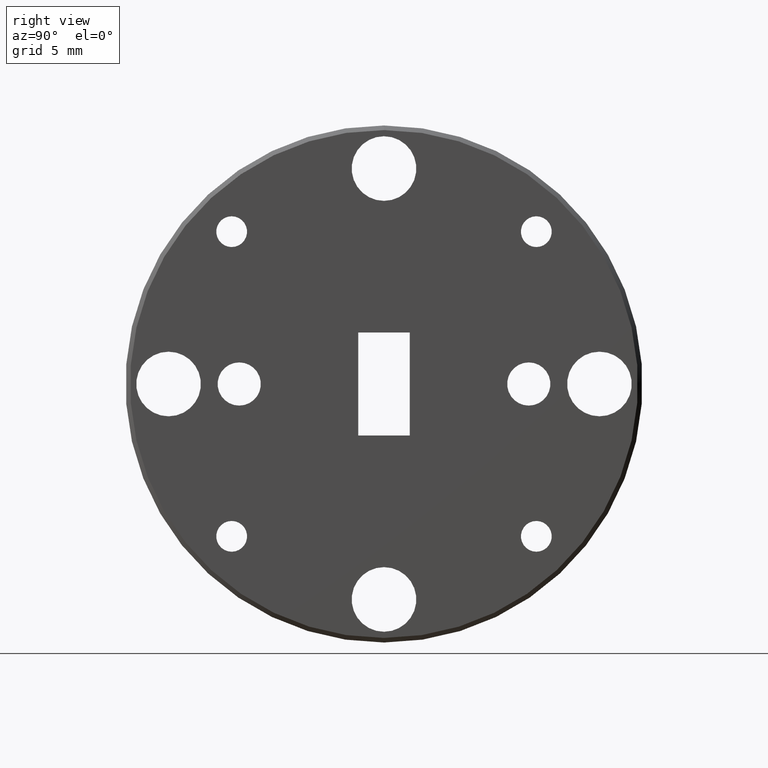
[diagram: clean part render]
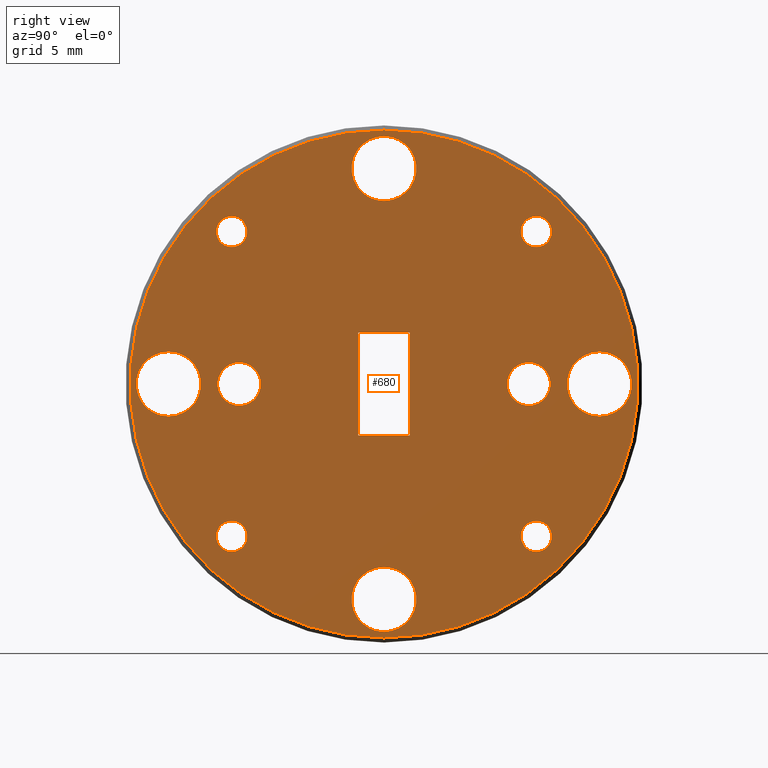
[diagram: same view with one face highlighted and labeled with its STEP entity id]
A machine part, right view. The second image highlights one B-rep face of the part: STEP entity #680.
In plain terms, the highlighted planar face has unit normal (1, 0, -0).
Its self-contained STEP definition (entity closure, byte-faithful):
#12 = DIRECTION ( 'NONE',  ( -0.0000000000000000000, -0.0000000000000000000, -1.000000000000000000 ) ) ;
#13 = DIRECTION ( 'NONE',  ( 1.000000000000000000, -0.0000000000000000000, -0.0000000000000000000 ) ) ;
#18 = CARTESIAN_POINT ( 'NONE',  ( 0.09200000000000004000, -0.3314563036811935000, 0.3314563036811948900 ) ) ;
#25 = CARTESIAN_POINT ( 'NONE',  ( 0.09200000000000004000, 0.3314563036811948900, 0.3314563036811935000 ) ) ;
#28 = CARTESIAN_POINT ( 'NONE',  ( 0.09200000000000004000, -0.3150000000000000000, 0.0000000000000000000 ) ) ;
#32 = CARTESIAN_POINT ( 'NONE',  ( 0.09200000000000004000, 0.5625000000000000000, 0.0000000000000000000 ) ) ;
#36 = EDGE_CURVE ( 'NONE', #704, #878, #49, .T. ) ;
#39 = DIRECTION ( 'NONE',  ( 1.000000000000000000, -0.0000000000000000000, -0.0000000000000000000 ) ) ;
#40 = DIRECTION ( 'NONE',  ( 0.0000000000000000000, 0.0000000000000000000, -1.000000000000000000 ) ) ;
#44 = VERTEX_POINT ( 'NONE', #168 ) ;
#45 = ORIENTED_EDGE ( 'NONE', *, *, #863, .T. ) ;
#48 = DIRECTION ( 'NONE',  ( 1.000000000000000000, -0.0000000000000000000, -0.0000000000000000000 ) ) ;
#49 = CIRCLE ( 'NONE', #999, 0.5525000000000003200 ) ;
#60 = FACE_BOUND ( 'NONE', #990, .T. ) ;
#61 = EDGE_CURVE ( 'NONE', #984, #682, #543, .T. ) ;
#70 = CIRCLE ( 'NONE', #142, 0.03349999999999972400 ) ;
#85 = FACE_OUTER_BOUND ( 'NONE', #855, .T. ) ;
#98 = CIRCLE ( 'NONE', #1012, 0.07031499999999975300 ) ;
#99 = CARTESIAN_POINT ( 'NONE',  ( 0.09200000000000004000, -0.05600000000000000800, 0.1120000000000000400 ) ) ;
#116 = DIRECTION ( 'NONE',  ( 1.000000000000000000, -0.0000000000000000000, -0.0000000000000000000 ) ) ;
#119 = EDGE_LOOP ( 'NONE', ( #1119, #507 ) ) ;
#120 = CARTESIAN_POINT ( 'NONE',  ( 0.09200000000000004000, 0.0000000000000000000, 0.5525000000000003200 ) ) ;
#134 = VERTEX_POINT ( 'NONE', #1059 ) ;
#137 = CARTESIAN_POINT ( 'NONE',  ( 0.09200000000000004000, 0.4687500000000000000, 0.0000000000000000000 ) ) ;
#140 = EDGE_CURVE ( 'NONE', #352, #670, #829, .T. ) ;
#142 = AXIS2_PLACEMENT_3D ( 'NONE', #649, #312, #1002 ) ;
#146 = ORIENTED_EDGE ( 'NONE', *, *, #1040, .F. ) ;
#156 = CARTESIAN_POINT ( 'NONE',  ( 0.09200000000000004000, 0.3314563036811948900, 0.3314563036811935000 ) ) ;
#157 = VERTEX_POINT ( 'NONE', #970 ) ;
#160 = CARTESIAN_POINT ( 'NONE',  ( 0.09200000000000004000, 0.4687500000000000000, -0.07031499999999975300 ) ) ;
#163 = AXIS2_PLACEMENT_3D ( 'NONE', #18, #647, #560 ) ;
#168 = CARTESIAN_POINT ( 'NONE',  ( 0.09200000000000004000, 0.3314563036811935000, -0.3649563036811946400 ) ) ;
#175 = CIRCLE ( 'NONE', #212, 0.07031499999999975300 ) ;
#177 = VERTEX_POINT ( 'NONE', #362 ) ;
#184 = AXIS2_PLACEMENT_3D ( 'NONE', #214, #13, #1075 ) ;
#186 = CIRCLE ( 'NONE', #918, 0.04699999999999998600 ) ;
#189 = ORIENTED_EDGE ( 'NONE', *, *, #1140, .T. ) ;
#191 = AXIS2_PLACEMENT_3D ( 'NONE', #156, #789, #883 ) ;
#193 = DIRECTION ( 'NONE',  ( 1.000000000000000000, -0.0000000000000000000, -0.0000000000000000000 ) ) ;
#197 = ORIENTED_EDGE ( 'NONE', *, *, #401, .F. ) ;
#198 = DIRECTION ( 'NONE',  ( 0.0000000000000000000, 0.0000000000000000000, -1.000000000000000000 ) ) ;
#199 = DIRECTION ( 'NONE',  ( 0.0000000000000000000, 0.0000000000000000000, -1.000000000000000000 ) ) ;
#202 = FACE_BOUND ( 'NONE', #244, .T. ) ;
#205 = CARTESIAN_POINT ( 'NONE',  ( 0.09200000000000004000, 0.3150000000000000000, 0.0000000000000000000 ) ) ;
#210 = PLANE ( 'NONE',  #596 ) ;
#211 = CARTESIAN_POINT ( 'NONE',  ( 0.09200000000000004000, -0.4687500000000000000, 0.0000000000000000000 ) ) ;
#212 = AXIS2_PLACEMENT_3D ( 'NONE', #211, #193, #1006 ) ;
#214 = CARTESIAN_POINT ( 'NONE',  ( 0.09200000000000004000, 0.0000000000000000000, 0.4687500000000000000 ) ) ;
#218 = CIRCLE ( 'NONE', #681, 0.5525000000000003200 ) ;
#221 = DIRECTION ( 'NONE',  ( 1.000000000000000000, -0.0000000000000000000, -0.0000000000000000000 ) ) ;
#244 = EDGE_LOOP ( 'NONE', ( #820, #343 ) ) ;
#250 = ORIENTED_EDGE ( 'NONE', *, *, #495, .F. ) ;
#261 = AXIS2_PLACEMENT_3D ( 'NONE', #25, #719, #198 ) ;
#262 = CARTESIAN_POINT ( 'NONE',  ( 0.09200000000000004000, 0.3314563036811948900, 0.3649563036811933100 ) ) ;
#265 = EDGE_CURVE ( 'NONE', #916, #335, #98, .T. ) ;
#271 = LINE ( 'NONE', #1113, #708 ) ;
#272 = CIRCLE ( 'NONE', #534, 0.07031499999999975300 ) ;
#273 = CARTESIAN_POINT ( 'NONE',  ( 0.09200000000000004000, -0.3314563036811949400, -0.3314563036811935000 ) ) ;
#275 = VERTEX_POINT ( 'NONE', #819 ) ;
#278 = CARTESIAN_POINT ( 'NONE',  ( 0.09200000000000004000, -0.4687500000000000000, 0.0000000000000000000 ) ) ;
#296 = FACE_BOUND ( 'NONE', #1028, .T. ) ;
#301 = DIRECTION ( 'NONE',  ( 0.0000000000000000000, 0.0000000000000000000, -1.000000000000000000 ) ) ;
#303 = AXIS2_PLACEMENT_3D ( 'NONE', #480, #48, #492 ) ;
#307 = EDGE_LOOP ( 'NONE', ( #551, #700 ) ) ;
#312 = DIRECTION ( 'NONE',  ( 1.000000000000000000, -0.0000000000000000000, -0.0000000000000000000 ) ) ;
#315 = DIRECTION ( 'NONE',  ( 0.0000000000000000000, 0.0000000000000000000, 1.000000000000000000 ) ) ;
#317 = CARTESIAN_POINT ( 'NONE',  ( 0.09200000000000004000, -0.3150000000000000000, 0.0000000000000000000 ) ) ;
#318 = EDGE_CURVE ( 'NONE', #384, #514, #354, .T. ) ;
#323 = ORIENTED_EDGE ( 'NONE', *, *, #996, .T. ) ;
#327 = CIRCLE ( 'NONE', #816, 0.04700000000000000700 ) ;
#333 = DIRECTION ( 'NONE',  ( 1.000000000000000000, -0.0000000000000000000, -0.0000000000000000000 ) ) ;
#335 = VERTEX_POINT ( 'NONE', #912 ) ;
#336 = ORIENTED_EDGE ( 'NONE', *, *, #531, .F. ) ;
#337 = CIRCLE ( 'NONE', #403, 0.04700000000000000700 ) ;
#338 = CIRCLE ( 'NONE', #1073, 0.07031499999999975300 ) ;
#339 = EDGE_CURVE ( 'NONE', #587, #365, #175, .T. ) ;
#343 = ORIENTED_EDGE ( 'NONE', *, *, #468, .F. ) ;
#345 = DIRECTION ( 'NONE',  ( 1.000000000000000000, -0.0000000000000000000, -0.0000000000000000000 ) ) ;
#351 = EDGE_LOOP ( 'NONE', ( #323, #1009, #189, #45 ) ) ;
#352 = VERTEX_POINT ( 'NONE', #387 ) ;
#353 = CIRCLE ( 'NONE', #397, 0.03349999999999972400 ) ;
#354 = CIRCLE ( 'NONE', #668, 0.07031499999999975300 ) ;
#358 = VERTEX_POINT ( 'NONE', #99 ) ;
#362 = CARTESIAN_POINT ( 'NONE',  ( 0.09200000000000004000, 0.3314563036811935000, -0.2979563036811951300 ) ) ;
#363 = CARTESIAN_POINT ( 'NONE',  ( 0.09200000000000004000, -0.05600000000000000800, -0.1119999999999999700 ) ) ;
#364 = VERTEX_POINT ( 'NONE', #998 ) ;
#365 = VERTEX_POINT ( 'NONE', #567 ) ;
#384 = VERTEX_POINT ( 'NONE', #542 ) ;
#387 = CARTESIAN_POINT ( 'NONE',  ( 0.09200000000000004000, 0.05600000000000000800, 0.1120000000000000400 ) ) ;
#390 = CARTESIAN_POINT ( 'NONE',  ( 0.09200000000000004000, 6.827405905246495700E-017, -0.5525000000000003200 ) ) ;
#397 = AXIS2_PLACEMENT_3D ( 'NONE', #273, #1062, #530 ) ;
#401 = EDGE_CURVE ( 'NONE', #134, #408, #684, .T. ) ;
#403 = AXIS2_PLACEMENT_3D ( 'NONE', #205, #552, #569 ) ;
#408 = VERTEX_POINT ( 'NONE', #920 ) ;
#414 = CARTESIAN_POINT ( 'NONE',  ( 0.09200000000000004000, 0.0000000000000000000, 0.5390649999999997900 ) ) ;
#420 = AXIS2_PLACEMENT_3D ( 'NONE', #925, #845, #744 ) ;
#433 = EDGE_CURVE ( 'NONE', #725, #917, #510, .T. ) ;
#451 = AXIS2_PLACEMENT_3D ( 'NONE', #317, #852, #675 ) ;
#456 = LINE ( 'NONE', #363, #1086 ) ;
#457 = FACE_BOUND ( 'NONE', #754, .T. ) ;
#466 = CARTESIAN_POINT ( 'NONE',  ( 0.09200000000000004000, 0.0000000000000000000, -0.4687500000000000000 ) ) ;
#468 = EDGE_CURVE ( 'NONE', #157, #712, #186, .T. ) ;
#471 = VERTEX_POINT ( 'NONE', #578 ) ;
#476 = ORIENTED_EDGE ( 'NONE', *, *, #730, .F. ) ;
#477 = DIRECTION ( 'NONE',  ( 1.000000000000000000, -0.0000000000000000000, -0.0000000000000000000 ) ) ;
#480 = CARTESIAN_POINT ( 'NONE',  ( 0.09200000000000004000, 0.3314563036811935000, -0.3314563036811948900 ) ) ;
#487 = DIRECTION ( 'NONE',  ( 0.0000000000000000000, 0.0000000000000000000, -1.000000000000000000 ) ) ;
#492 = DIRECTION ( 'NONE',  ( 0.0000000000000000000, 0.0000000000000000000, -1.000000000000000000 ) ) ;
#495 = EDGE_CURVE ( 'NONE', #177, #44, #70, .T. ) ;
#498 = AXIS2_PLACEMENT_3D ( 'NONE', #1099, #747, #301 ) ;
#506 = CARTESIAN_POINT ( 'NONE',  ( 0.09200000000000004000, 0.3150000000000000000, -0.04700000000000000700 ) ) ;
#507 = ORIENTED_EDGE ( 'NONE', *, *, #767, .F. ) ;
#510 = CIRCLE ( 'NONE', #956, 0.07031499999999975300 ) ;
#514 = VERTEX_POINT ( 'NONE', #414 ) ;
#523 = EDGE_CURVE ( 'NONE', #365, #587, #338, .T. ) ;
#530 = DIRECTION ( 'NONE',  ( 0.0000000000000000000, 0.0000000000000000000, -1.000000000000000000 ) ) ;
#531 = EDGE_CURVE ( 'NONE', #44, #177, #950, .T. ) ;
#534 = AXIS2_PLACEMENT_3D ( 'NONE', #137, #751, #1111 ) ;
#538 = VERTEX_POINT ( 'NONE', #844 ) ;
#542 = CARTESIAN_POINT ( 'NONE',  ( 0.09200000000000004000, 8.611103968204586800E-018, 0.3984350000000002600 ) ) ;
#543 = CIRCLE ( 'NONE', #191, 0.03349999999999975900 ) ;
#545 = CARTESIAN_POINT ( 'NONE',  ( 0.09200000000000004000, 0.4687500000000000000, 0.07031499999999975300 ) ) ;
#551 = ORIENTED_EDGE ( 'NONE', *, *, #433, .F. ) ;
#552 = DIRECTION ( 'NONE',  ( 1.000000000000000000, -0.0000000000000000000, -0.0000000000000000000 ) ) ;
#555 = EDGE_CURVE ( 'NONE', #712, #157, #866, .T. ) ;
#556 = VECTOR ( 'NONE', #1146, 39.37007874015748100 ) ;
#560 = DIRECTION ( 'NONE',  ( 0.0000000000000000000, 0.0000000000000000000, -1.000000000000000000 ) ) ;
#567 = CARTESIAN_POINT ( 'NONE',  ( 0.09200000000000004000, -0.4687500000000000000, -0.07031499999999975300 ) ) ;
#569 = DIRECTION ( 'NONE',  ( 0.0000000000000000000, 0.0000000000000000000, -1.000000000000000000 ) ) ;
#570 = EDGE_CURVE ( 'NONE', #917, #725, #272, .T. ) ;
#578 = CARTESIAN_POINT ( 'NONE',  ( 0.09200000000000004000, -0.3314563036811949400, -0.2979563036811937500 ) ) ;
#580 = ORIENTED_EDGE ( 'NONE', *, *, #318, .F. ) ;
#587 = VERTEX_POINT ( 'NONE', #937 ) ;
#596 = AXIS2_PLACEMENT_3D ( 'NONE', #32, #907, #1079 ) ;
#603 = EDGE_CURVE ( 'NONE', #682, #984, #810, .T. ) ;
#605 = CARTESIAN_POINT ( 'NONE',  ( 0.09200000000000004000, 0.0000000000000000000, 0.0000000000000000000 ) ) ;
#626 = CIRCLE ( 'NONE', #163, 0.03349999999999975900 ) ;
#642 = VECTOR ( 'NONE', #12, 39.37007874015748100 ) ;
#647 = DIRECTION ( 'NONE',  ( 1.000000000000000000, -0.0000000000000000000, -0.0000000000000000000 ) ) ;
#649 = CARTESIAN_POINT ( 'NONE',  ( 0.09200000000000004000, 0.3314563036811935000, -0.3314563036811948900 ) ) ;
#658 = CARTESIAN_POINT ( 'NONE',  ( 0.09200000000000004000, 0.4687500000000000000, 0.0000000000000000000 ) ) ;
#664 = CARTESIAN_POINT ( 'NONE',  ( 0.09200000000000004000, -0.3314563036811949400, -0.3314563036811935000 ) ) ;
#668 = AXIS2_PLACEMENT_3D ( 'NONE', #1085, #908, #731 ) ;
#670 = VERTEX_POINT ( 'NONE', #818 ) ;
#674 = FACE_BOUND ( 'NONE', #706, .T. ) ;
#675 = DIRECTION ( 'NONE',  ( 0.0000000000000000000, 0.0000000000000000000, -1.000000000000000000 ) ) ;
#678 = EDGE_CURVE ( 'NONE', #408, #134, #626, .T. ) ;
#679 = ORIENTED_EDGE ( 'NONE', *, *, #36, .T. ) ;
#680 = ADVANCED_FACE ( 'NONE', ( #1131, #202, #85, #921, #773, #296, #60, #1019, #935, #697, #457, #674 ), #210, .T. ) ;
#681 = AXIS2_PLACEMENT_3D ( 'NONE', #699, #703, #788 ) ;
#682 = VERTEX_POINT ( 'NONE', #993 ) ;
#684 = CIRCLE ( 'NONE', #420, 0.03349999999999975900 ) ;
#696 = DIRECTION ( 'NONE',  ( 0.0000000000000000000, 0.0000000000000000000, -1.000000000000000000 ) ) ;
#697 = FACE_BOUND ( 'NONE', #1091, .T. ) ;
#699 = CARTESIAN_POINT ( 'NONE',  ( 0.09200000000000004000, 0.0000000000000000000, 0.0000000000000000000 ) ) ;
#700 = ORIENTED_EDGE ( 'NONE', *, *, #570, .F. ) ;
#703 = DIRECTION ( 'NONE',  ( 1.000000000000000000, -0.0000000000000000000, -0.0000000000000000000 ) ) ;
#704 = VERTEX_POINT ( 'NONE', #120 ) ;
#706 = EDGE_LOOP ( 'NONE', ( #736, #146 ) ) ;
#708 = VECTOR ( 'NONE', #315, 39.37007874015748100 ) ;
#712 = VERTEX_POINT ( 'NONE', #1084 ) ;
#714 = AXIS2_PLACEMENT_3D ( 'NONE', #664, #39, #487 ) ;
#719 = DIRECTION ( 'NONE',  ( 1.000000000000000000, -0.0000000000000000000, -0.0000000000000000000 ) ) ;
#725 = VERTEX_POINT ( 'NONE', #545 ) ;
#730 = EDGE_CURVE ( 'NONE', #514, #384, #1120, .T. ) ;
#731 = DIRECTION ( 'NONE',  ( 0.0000000000000000000, 0.0000000000000000000, -1.000000000000000000 ) ) ;
#736 = ORIENTED_EDGE ( 'NONE', *, *, #782, .F. ) ;
#739 = CIRCLE ( 'NONE', #714, 0.03349999999999972400 ) ;
#744 = DIRECTION ( 'NONE',  ( 0.0000000000000000000, 0.0000000000000000000, -1.000000000000000000 ) ) ;
#747 = DIRECTION ( 'NONE',  ( 1.000000000000000000, -0.0000000000000000000, -0.0000000000000000000 ) ) ;
#751 = DIRECTION ( 'NONE',  ( 1.000000000000000000, -0.0000000000000000000, -0.0000000000000000000 ) ) ;
#754 = EDGE_LOOP ( 'NONE', ( #1044, #978 ) ) ;
#759 = EDGE_CURVE ( 'NONE', #1001, #364, #337, .T. ) ;
#767 = EDGE_CURVE ( 'NONE', #335, #916, #948, .T. ) ;
#769 = ORIENTED_EDGE ( 'NONE', *, *, #911, .T. ) ;
#773 = FACE_BOUND ( 'NONE', #307, .T. ) ;
#782 = EDGE_CURVE ( 'NONE', #471, #275, #739, .T. ) ;
#785 = CARTESIAN_POINT ( 'NONE',  ( 0.09200000000000004000, -0.05600000000000000800, 0.1120000000000000400 ) ) ;
#788 = DIRECTION ( 'NONE',  ( 0.0000000000000000000, 0.0000000000000000000, -1.000000000000000000 ) ) ;
#789 = DIRECTION ( 'NONE',  ( 1.000000000000000000, -0.0000000000000000000, -0.0000000000000000000 ) ) ;
#801 = CARTESIAN_POINT ( 'NONE',  ( 0.09200000000000004000, 0.05600000000000000800, -0.1119999999999999700 ) ) ;
#809 = DIRECTION ( 'NONE',  ( -0.0000000000000000000, -1.000000000000000000, -0.0000000000000000000 ) ) ;
#810 = CIRCLE ( 'NONE', #261, 0.03349999999999975900 ) ;
#816 = AXIS2_PLACEMENT_3D ( 'NONE', #1050, #345, #1134 ) ;
#818 = CARTESIAN_POINT ( 'NONE',  ( 0.09200000000000004000, 0.05600000000000002900, -0.1119999999999999700 ) ) ;
#819 = CARTESIAN_POINT ( 'NONE',  ( 0.09200000000000004000, -0.3314563036811949400, -0.3649563036811933100 ) ) ;
#820 = ORIENTED_EDGE ( 'NONE', *, *, #555, .F. ) ;
#829 = LINE ( 'NONE', #801, #642 ) ;
#844 = CARTESIAN_POINT ( 'NONE',  ( 0.09200000000000004000, -0.05600000000000000800, -0.1119999999999999700 ) ) ;
#845 = DIRECTION ( 'NONE',  ( 1.000000000000000000, -0.0000000000000000000, -0.0000000000000000000 ) ) ;
#852 = DIRECTION ( 'NONE',  ( 1.000000000000000000, -0.0000000000000000000, -0.0000000000000000000 ) ) ;
#855 = EDGE_LOOP ( 'NONE', ( #679, #769 ) ) ;
#863 = EDGE_CURVE ( 'NONE', #538, #358, #271, .T. ) ;
#866 = CIRCLE ( 'NONE', #451, 0.04699999999999998600 ) ;
#878 = VERTEX_POINT ( 'NONE', #390 ) ;
#879 = ORIENTED_EDGE ( 'NONE', *, *, #339, .F. ) ;
#883 = DIRECTION ( 'NONE',  ( 0.0000000000000000000, 0.0000000000000000000, -1.000000000000000000 ) ) ;
#885 = EDGE_LOOP ( 'NONE', ( #250, #336 ) ) ;
#907 = DIRECTION ( 'NONE',  ( 1.000000000000000000, 0.0000000000000000000, -0.0000000000000000000 ) ) ;
#908 = DIRECTION ( 'NONE',  ( 1.000000000000000000, -0.0000000000000000000, -0.0000000000000000000 ) ) ;
#911 = EDGE_CURVE ( 'NONE', #878, #704, #218, .T. ) ;
#912 = CARTESIAN_POINT ( 'NONE',  ( 0.09200000000000004000, 8.611103968204586800E-018, -0.5390649999999997900 ) ) ;
#916 = VERTEX_POINT ( 'NONE', #1013 ) ;
#917 = VERTEX_POINT ( 'NONE', #160 ) ;
#918 = AXIS2_PLACEMENT_3D ( 'NONE', #28, #116, #928 ) ;
#920 = CARTESIAN_POINT ( 'NONE',  ( 0.09200000000000004000, -0.3314563036811935000, 0.2979563036811951300 ) ) ;
#921 = FACE_BOUND ( 'NONE', #351, .T. ) ;
#925 = CARTESIAN_POINT ( 'NONE',  ( 0.09200000000000004000, -0.3314563036811935000, 0.3314563036811948900 ) ) ;
#927 = EDGE_CURVE ( 'NONE', #364, #1001, #327, .T. ) ;
#928 = DIRECTION ( 'NONE',  ( 0.0000000000000000000, 0.0000000000000000000, -1.000000000000000000 ) ) ;
#935 = FACE_BOUND ( 'NONE', #885, .T. ) ;
#937 = CARTESIAN_POINT ( 'NONE',  ( 0.09200000000000004000, -0.4687500000000000000, 0.07031499999999975300 ) ) ;
#944 = ORIENTED_EDGE ( 'NONE', *, *, #523, .F. ) ;
#948 = CIRCLE ( 'NONE', #498, 0.07031499999999975300 ) ;
#950 = CIRCLE ( 'NONE', #303, 0.03349999999999972400 ) ;
#956 = AXIS2_PLACEMENT_3D ( 'NONE', #658, #221, #40 ) ;
#958 = EDGE_LOOP ( 'NONE', ( #959, #1083 ) ) ;
#959 = ORIENTED_EDGE ( 'NONE', *, *, #927, .F. ) ;
#970 = CARTESIAN_POINT ( 'NONE',  ( 0.09200000000000004000, -0.3150000000000000000, -0.04699999999999998600 ) ) ;
#974 = LINE ( 'NONE', #785, #556 ) ;
#978 = ORIENTED_EDGE ( 'NONE', *, *, #603, .F. ) ;
#984 = VERTEX_POINT ( 'NONE', #262 ) ;
#990 = EDGE_LOOP ( 'NONE', ( #879, #944 ) ) ;
#993 = CARTESIAN_POINT ( 'NONE',  ( 0.09200000000000004000, 0.3314563036811948900, 0.2979563036811937500 ) ) ;
#996 = EDGE_CURVE ( 'NONE', #358, #352, #974, .T. ) ;
#998 = CARTESIAN_POINT ( 'NONE',  ( 0.09200000000000004000, 0.3150000000000000000, 0.04700000000000000700 ) ) ;
#999 = AXIS2_PLACEMENT_3D ( 'NONE', #605, #333, #696 ) ;
#1001 = VERTEX_POINT ( 'NONE', #506 ) ;
#1002 = DIRECTION ( 'NONE',  ( 0.0000000000000000000, 0.0000000000000000000, -1.000000000000000000 ) ) ;
#1006 = DIRECTION ( 'NONE',  ( 0.0000000000000000000, 0.0000000000000000000, -1.000000000000000000 ) ) ;
#1009 = ORIENTED_EDGE ( 'NONE', *, *, #140, .T. ) ;
#1012 = AXIS2_PLACEMENT_3D ( 'NONE', #466, #1093, #199 ) ;
#1013 = CARTESIAN_POINT ( 'NONE',  ( 0.09200000000000004000, 0.0000000000000000000, -0.3984350000000002600 ) ) ;
#1019 = FACE_BOUND ( 'NONE', #119, .T. ) ;
#1028 = EDGE_LOOP ( 'NONE', ( #476, #580 ) ) ;
#1040 = EDGE_CURVE ( 'NONE', #275, #471, #353, .T. ) ;
#1044 = ORIENTED_EDGE ( 'NONE', *, *, #61, .F. ) ;
#1050 = CARTESIAN_POINT ( 'NONE',  ( 0.09200000000000004000, 0.3150000000000000000, 0.0000000000000000000 ) ) ;
#1059 = CARTESIAN_POINT ( 'NONE',  ( 0.09200000000000004000, -0.3314563036811935000, 0.3649563036811946400 ) ) ;
#1062 = DIRECTION ( 'NONE',  ( 1.000000000000000000, -0.0000000000000000000, -0.0000000000000000000 ) ) ;
#1073 = AXIS2_PLACEMENT_3D ( 'NONE', #278, #477, #1106 ) ;
#1075 = DIRECTION ( 'NONE',  ( 0.0000000000000000000, 0.0000000000000000000, -1.000000000000000000 ) ) ;
#1079 = DIRECTION ( 'NONE',  ( -0.0000000000000000000, 0.0000000000000000000, -1.000000000000000000 ) ) ;
#1083 = ORIENTED_EDGE ( 'NONE', *, *, #759, .F. ) ;
#1084 = CARTESIAN_POINT ( 'NONE',  ( 0.09200000000000004000, -0.3150000000000000000, 0.04699999999999998600 ) ) ;
#1085 = CARTESIAN_POINT ( 'NONE',  ( 0.09200000000000004000, 0.0000000000000000000, 0.4687500000000000000 ) ) ;
#1086 = VECTOR ( 'NONE', #809, 39.37007874015748100 ) ;
#1091 = EDGE_LOOP ( 'NONE', ( #197, #1109 ) ) ;
#1093 = DIRECTION ( 'NONE',  ( 1.000000000000000000, -0.0000000000000000000, -0.0000000000000000000 ) ) ;
#1099 = CARTESIAN_POINT ( 'NONE',  ( 0.09200000000000004000, 0.0000000000000000000, -0.4687500000000000000 ) ) ;
#1106 = DIRECTION ( 'NONE',  ( 0.0000000000000000000, 0.0000000000000000000, -1.000000000000000000 ) ) ;
#1109 = ORIENTED_EDGE ( 'NONE', *, *, #678, .F. ) ;
#1111 = DIRECTION ( 'NONE',  ( 0.0000000000000000000, 0.0000000000000000000, -1.000000000000000000 ) ) ;
#1113 = CARTESIAN_POINT ( 'NONE',  ( 0.09200000000000004000, -0.05600000000000000800, -0.1119999999999999700 ) ) ;
#1119 = ORIENTED_EDGE ( 'NONE', *, *, #265, .F. ) ;
#1120 = CIRCLE ( 'NONE', #184, 0.07031499999999975300 ) ;
#1131 = FACE_BOUND ( 'NONE', #958, .T. ) ;
#1134 = DIRECTION ( 'NONE',  ( 0.0000000000000000000, 0.0000000000000000000, -1.000000000000000000 ) ) ;
#1140 = EDGE_CURVE ( 'NONE', #670, #538, #456, .T. ) ;
#1146 = DIRECTION ( 'NONE',  ( 0.0000000000000000000, 1.000000000000000000, 0.0000000000000000000 ) ) ;